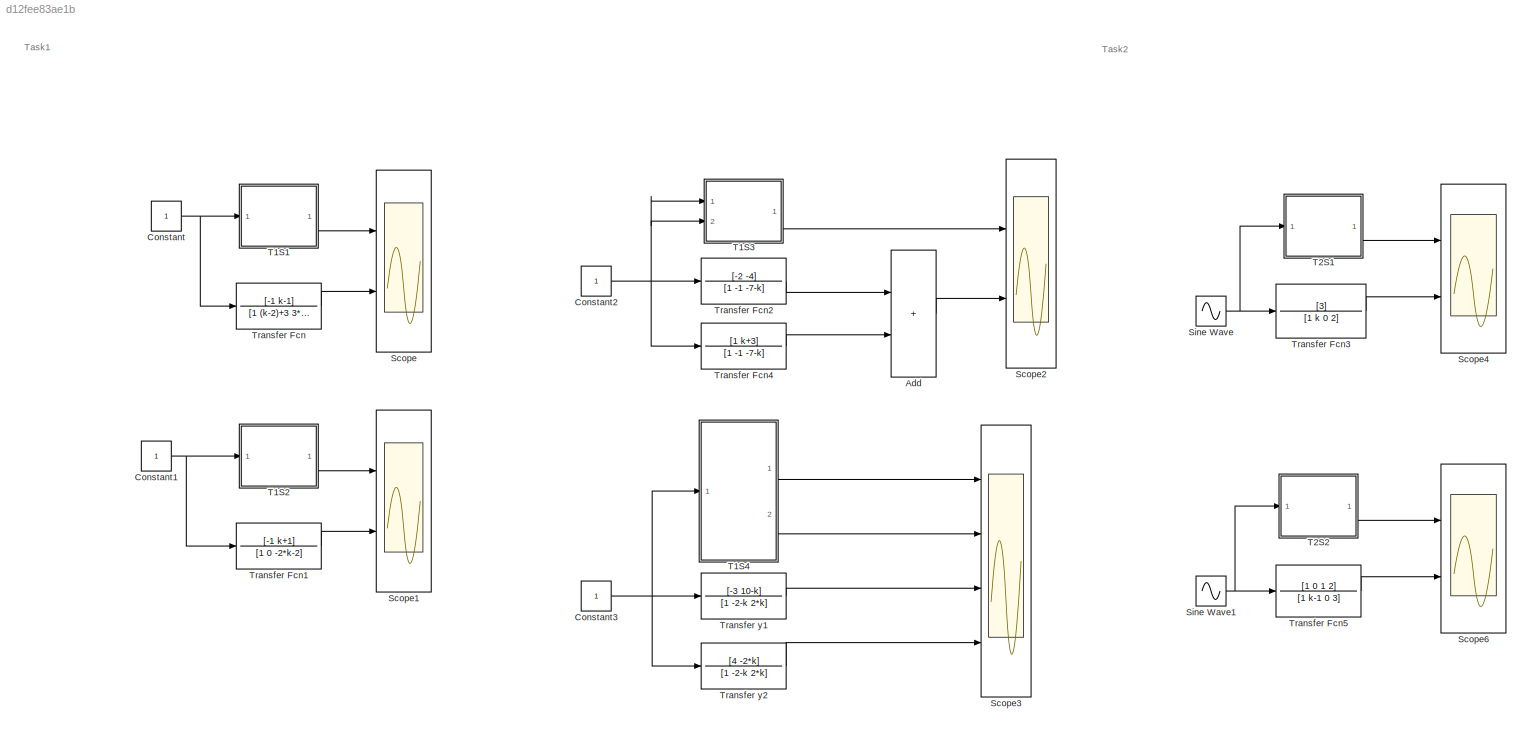
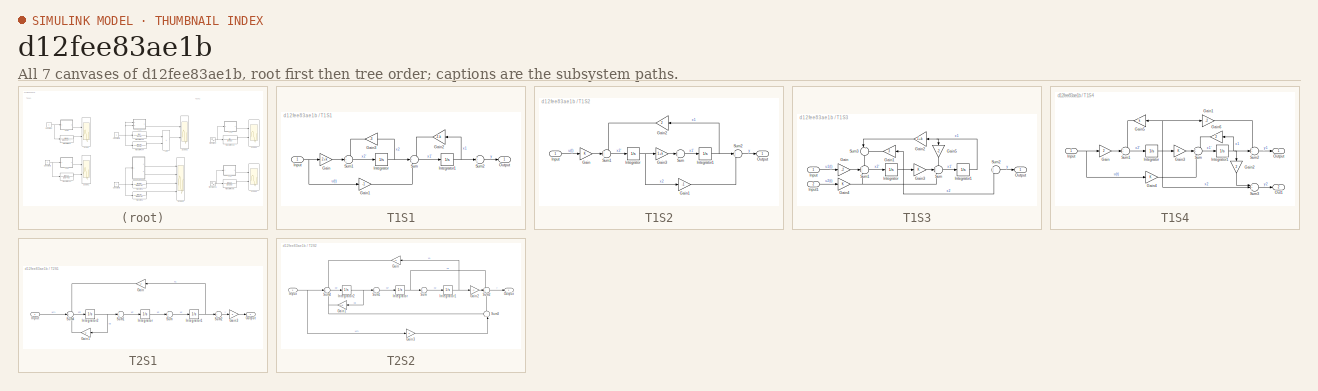
[diagram: thumbnail index - all 7 canvases of the model, root first then tree order]
MODEL slx_d12fee83ae1b
KIND model
CONFIG AbsTol = auto
CONFIG EnableMultiTasking = off
CONFIG FixedStep = auto
CONFIG MaxStep = 1e-3
CONFIG MinStep = auto
CONFIG RelTol = 1e-6
CONFIG SampleTimeConstraint = Unconstrained
CONFIG SolverName = ode113
CONFIG StartTime = 0.0
CONFIG StopTime = 10
BLOCK [Sum] Add
  IconShape = rectangular
  Ports = [2, 1]
  RndMeth = Nearest
BLOCK [Constant] Constant
BLOCK [Constant] Constant1
BLOCK [Constant] Constant2
BLOCK [Constant] Constant3
BLOCK [Scope] Scope
  Floating = off
  NumInputPorts = 2
  Ports = [2]
  ScopeSpecificationString = Simulink.scopes.TimeScopeBlockCfg('CurrentConfiguration', extmgr.ConfigurationSet(extmgr.Configuration('Core','General UI',true),extmgr.Configuration('Core','Source UI',true),extmgr.Configuration('Sources','WiredSimulink',true),extmgr.Configuration('Visuals','Time Domain',true,'SerializedDisplays',{struct('MinYLimReal','-0.09955','MaxYLimReal','0.4555','YLabelReal','','MinYLimMag','0.00000','MaxYL...<+1481ch>
BLOCK [Scope] Scope1
  Floating = off
  NumInputPorts = 2
  Ports = [2]
  ScopeSpecificationString = Simulink.scopes.TimeScopeBlockCfg('CurrentConfiguration', extmgr.ConfigurationSet(extmgr.Configuration('Core','General UI',true),extmgr.Configuration('Core','Source UI',true),extmgr.Configuration('Sources','WiredSimulink',true,'DataLoggingVariableName','ScopeData1'),extmgr.Configuration('Visuals','Time Domain',true,'SerializedDisplays',{struct('MinYLimReal','-46.59034','MaxYLimReal','418.64323','Y...<+1552ch>
BLOCK [Scope] Scope2
  Floating = off
  NumInputPorts = 2
  Ports = [2]
  ScopeSpecificationString = Simulink.scopes.TimeScopeBlockCfg('CurrentConfiguration', extmgr.ConfigurationSet(extmgr.Configuration('Core','General UI',true),extmgr.Configuration('Core','Source UI',true),extmgr.Configuration('Sources','WiredSimulink',true,'DataLoggingVariableName','ScopeData2'),extmgr.Configuration('Visuals','Time Domain',true,'SerializedDisplays',{struct('MinYLimReal','-4.25','MaxYLimReal','18.25','YLabelRea...<+1547ch>
BLOCK [Scope] Scope3
  Floating = off
  NumInputPorts = 4
  Ports = [4]
  ScopeSpecificationString = Simulink.scopes.TimeScopeBlockCfg('CurrentConfiguration', extmgr.ConfigurationSet(extmgr.Configuration('Core','General UI',true),extmgr.Configuration('Core','Source UI',true),extmgr.Configuration('Sources','WiredSimulink',true,'DataLoggingVariableName','ScopeData3'),extmgr.Configuration('Visuals','Time Domain',true,'SerializedDisplays',{struct('MinYLimReal','-996922741436628.25','MaxYLimReal','815...<+1944ch>
BLOCK [Scope] Scope4
  Floating = off
  NumInputPorts = 2
  Ports = [2]
  ScopeSpecificationString = Simulink.scopes.TimeScopeBlockCfg('CurrentConfiguration', extmgr.ConfigurationSet(extmgr.Configuration('Core','General UI',true),extmgr.Configuration('Core','Source UI',true),extmgr.Configuration('Sources','WiredSimulink',true,'DataLoggingVariableName','ScopeData4'),extmgr.Configuration('Visuals','Time Domain',true,'SerializedDisplays',{struct('MinYLimReal','-3.03569','MaxYLimReal','2.73789','YLab...<+1523ch>
BLOCK [Scope] Scope6
  Floating = off
  NumInputPorts = 2
  Ports = [2]
  ScopeSpecificationString = Simulink.scopes.TimeScopeBlockCfg('CurrentConfiguration', extmgr.ConfigurationSet(extmgr.Configuration('Core','General UI',true),extmgr.Configuration('Core','Source UI',true),extmgr.Configuration('Sources','WiredSimulink',true,'DataLoggingVariableName','ScopeData1'),extmgr.Configuration('Visuals','Time Domain',true,'SerializedDisplays',{struct('MinYLimReal','-3.10675','MaxYLimReal','4.12784','YLab...<+1523ch>
BLOCK [Sin] Sine Wave
  Amplitude = 3
  Frequency = 2
  Ports = [0, 1]
  SampleTime = 0
BLOCK [Sin] Sine Wave1
  Amplitude = 3
  Frequency = 2
  Ports = [0, 1]
  SampleTime = 0
BLOCK [SubSystem] T1S1
  Ports = [1, 1]
  RequestExecContextInheritance = off
BLOCK [Gain] T1S1/Gain
  Gain = 2+k
BLOCK [Gain] T1S1/Gain1
  Gain = -1
BLOCK [Gain] T1S1/Gain2
  Gain = 2-k
  NameLocation = top
BLOCK [Gain] T1S1/Gain3
  Gain = -3
  NameLocation = top
BLOCK [Inport] T1S1/Input
BLOCK [Integrator] T1S1/Integrator
  Ports = [1, 1]
BLOCK [Integrator] T1S1/Integrator1
  Ports = [1, 1]
BLOCK [Outport] T1S1/Output
BLOCK [Sum] T1S1/Sum
  Inputs = +++
  Ports = [3, 1]
BLOCK [Sum] T1S1/Sum1
  Inputs = +++
  Ports = [3, 1]
BLOCK [Sum] T1S1/Sum2
  Inputs = +++
  Ports = [3, 1]
BLOCK [SubSystem] T1S2
  Ports = [1, 1]
  RequestExecContextInheritance = off
BLOCK [Gain] T1S2/Gain
BLOCK [Gain] T1S2/Gain1
  Gain = -1
BLOCK [Gain] T1S2/Gain2
  Gain = 2
  NameLocation = top
BLOCK [Gain] T1S2/Gain3
  Gain = 1+k
BLOCK [Inport] T1S2/Input
BLOCK [Integrator] T1S2/Integrator
  Ports = [1, 1]
BLOCK [Integrator] T1S2/Integrator1
  Ports = [1, 1]
BLOCK [Outport] T1S2/Output
BLOCK [Sum] T1S2/Sum
  Inputs = +++
  Ports = [3, 1]
BLOCK [Sum] T1S2/Sum1
  Inputs = +++
  Ports = [3, 1]
BLOCK [Sum] T1S2/Sum2
  Inputs = +++
  Ports = [3, 1]
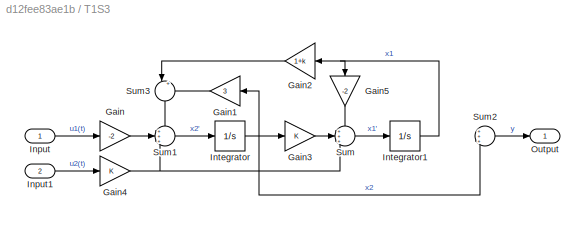
BLOCK [SubSystem] T1S3
  Ports = [2, 1]
  RequestExecContextInheritance = off
BLOCK [Gain] T1S3/Gain
  Gain = -2
BLOCK [Gain] T1S3/Gain1
  Gain = 3
  NameLocation = top
BLOCK [Gain] T1S3/Gain2
  Gain = 1+k
  NameLocation = top
BLOCK [Gain] T1S3/Gain3
BLOCK [Gain] T1S3/Gain4
BLOCK [Gain] T1S3/Gain5
  Gain = -2
  NameLocation = left
BLOCK [Inport] T1S3/Input
BLOCK [Inport] T1S3/Input1
  Port = 2
BLOCK [Integrator] T1S3/Integrator
  Ports = [1, 1]
BLOCK [Integrator] T1S3/Integrator1
  Ports = [1, 1]
BLOCK [Outport] T1S3/Output
BLOCK [Sum] T1S3/Sum
  Inputs = +++
  Ports = [3, 1]
BLOCK [Sum] T1S3/Sum1
  Inputs = +++
  Ports = [3, 1]
BLOCK [Sum] T1S3/Sum2
  Inputs = +++
  Ports = [3, 1]
BLOCK [Sum] T1S3/Sum3
  Inputs = |++
  NameLocation = left
  Ports = [2, 1]
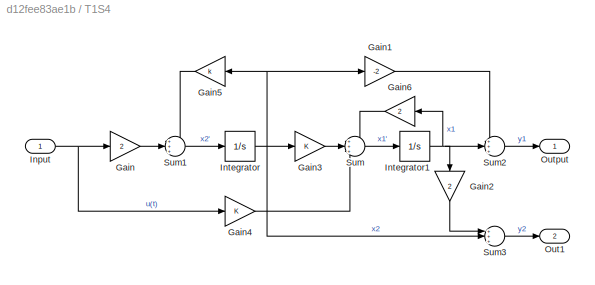
BLOCK [SubSystem] T1S4
  Ports = [1, 2]
  RequestExecContextInheritance = off
BLOCK [Gain] T1S4/Gain
  Gain = 2
BLOCK [Gain] T1S4/Gain1
  Gain = -2
BLOCK [Gain] T1S4/Gain2
  Gain = 2
  NameLocation = left
BLOCK [Gain] T1S4/Gain3
BLOCK [Gain] T1S4/Gain4
BLOCK [Gain] T1S4/Gain5
  Gain = k
  NameLocation = top
BLOCK [Gain] T1S4/Gain6
  Gain = 2
  NameLocation = top
BLOCK [Inport] T1S4/Input
BLOCK [Integrator] T1S4/Integrator
  Ports = [1, 1]
BLOCK [Integrator] T1S4/Integrator1
  Ports = [1, 1]
BLOCK [Outport] T1S4/Out1
  Port = 2
BLOCK [Outport] T1S4/Output
BLOCK [Sum] T1S4/Sum
  Inputs = +++
  Ports = [3, 1]
BLOCK [Sum] T1S4/Sum1
  Inputs = +++
  Ports = [3, 1]
BLOCK [Sum] T1S4/Sum2
  Inputs = +++
  Ports = [3, 1]
BLOCK [Sum] T1S4/Sum3
  Inputs = +++
  Ports = [3, 1]
BLOCK [SubSystem] T2S1
  Ports = [1, 1]
  RequestExecContextInheritance = off
BLOCK [Gain] T2S1/Gain
  Gain = -2
  NameLocation = top
BLOCK [Gain] T2S1/Gain1
  Gain = -k
  NameLocation = top
BLOCK [Gain] T2S1/Gain3
  Gain = 3
BLOCK [Inport] T2S1/Input
BLOCK [Integrator] T2S1/Integrator
  Ports = [1, 1]
BLOCK [Integrator] T2S1/Integrator1
  Ports = [1, 1]
BLOCK [Integrator] T2S1/Integrator2
  Ports = [1, 1]
BLOCK [Outport] T2S1/Output
BLOCK [Sum] T2S1/Sum
  Inputs = +++
  Ports = [3, 1]
BLOCK [Sum] T2S1/Sum1
  Inputs = +++
  Ports = [3, 1]
BLOCK [Sum] T2S1/Sum2
  Inputs = +++
  Ports = [3, 1]
BLOCK [Sum] T2S1/Sum4
  Inputs = +++
  Ports = [3, 1]
BLOCK [SubSystem] T2S2
  Ports = [1, 1]
  RequestExecContextInheritance = off
BLOCK [Gain] T2S2/Gain
  Gain = -3
  NameLocation = top
BLOCK [Gain] T2S2/Gain1
  Gain = 1-k
  NameLocation = top
BLOCK [Gain] T2S2/Gain2
  Gain = -1
BLOCK [Gain] T2S2/Gain3
BLOCK [Inport] T2S2/Input
BLOCK [Integrator] T2S2/Integrator
  Ports = [1, 1]
BLOCK [Integrator] T2S2/Integrator1
  Ports = [1, 1]
BLOCK [Integrator] T2S2/Integrator2
  Ports = [1, 1]
BLOCK [Outport] T2S2/Output
BLOCK [Sum] T2S2/Sum
  Inputs = +++
  Ports = [3, 1]
BLOCK [Sum] T2S2/Sum1
  Inputs = +++
  Ports = [3, 1]
BLOCK [Sum] T2S2/Sum2
  Inputs = +++
  Ports = [3, 1]
BLOCK [Sum] T2S2/Sum3
  Inputs = ++|
  NameLocation = right
  Ports = [2, 1]
BLOCK [Sum] T2S2/Sum4
  Inputs = +++
  Ports = [3, 1]
BLOCK [TransferFcn] Transfer Fcn
  Denominator = [1 (k-2)+3 3*(k-2)]
  Numerator = [-1 k-1]
BLOCK [TransferFcn] Transfer Fcn1
  Denominator = [1 0 -2*k-2]
  Numerator = [-1 k+1]
BLOCK [TransferFcn] Transfer Fcn2
  Denominator = [1 -1 -7-k]
  Numerator = [-2 -4]
BLOCK [TransferFcn] Transfer Fcn3
  Denominator = [1 k 0 2]
  Numerator = [3]
BLOCK [TransferFcn] Transfer Fcn4
  Denominator = [1 -1 -7-k]
  Numerator = [1 k+3]
BLOCK [TransferFcn] Transfer Fcn5
  Denominator = [1 k-1 0 3]
  Numerator = [1 0 1 2]
BLOCK [TransferFcn] Transfer y1
  Denominator = [1 -2-k 2*k]
  Numerator = [-3 10-k]
BLOCK [TransferFcn] Transfer y2
  Denominator = [1 -2-k 2*k]
  Numerator = [4 -2*k]
ANNOTATION (root): Task1
ANNOTATION (root): Task2
LINE Add:1 -> Scope2:2
NET Constant1:1 -> T1S2:1, Transfer Fcn1:1
NET Constant2:1 -> T1S3:1, T1S3:2, Transfer Fcn2:1, Transfer Fcn4:1
NET Constant3:1 -> T1S4:1, Transfer y1:1, Transfer y2:1
NET Constant:1 -> T1S1:1, Transfer Fcn:1
NET Sine Wave1:1 -> T2S2:1, Transfer Fcn5:1
NET Sine Wave:1 -> T2S1:1, Transfer Fcn3:1
LINE T1S1/Gain1:1 -> T1S1/Sum:3
LINE T1S1/Gain2:1 -> T1S1/Sum:1
LINE T1S1/Gain3:1 -> T1S1/Sum1:1
LINE T1S1/Gain:1 -> T1S1/Sum1:2
NET T1S1/Input:1 -> T1S1/Gain1:1, T1S1/Gain:1
NET T1S1/Integrator1:1 -> T1S1/Gain2:1, T1S1/Sum2:2
NET T1S1/Integrator:1 -> T1S1/Gain3:1, T1S1/Sum:2
LINE T1S1/Sum1:1 -> T1S1/Integrator:1
LINE T1S1/Sum2:1 -> T1S1/Output:1
LINE T1S1/Sum:1 -> T1S1/Integrator1:1
LINE T1S1:1 -> Scope:1
LINE T1S2/Gain1:1 -> T1S2/Sum2:3
LINE T1S2/Gain2:1 -> T1S2/Sum1:1
LINE T1S2/Gain3:1 -> T1S2/Sum:2
LINE T1S2/Gain:1 -> T1S2/Sum1:2
LINE T1S2/Input:1 -> T1S2/Gain:1
NET T1S2/Integrator1:1 -> T1S2/Gain2:1, T1S2/Sum2:2
NET T1S2/Integrator:1 -> T1S2/Gain1:1, T1S2/Gain3:1
LINE T1S2/Sum1:1 -> T1S2/Integrator:1
LINE T1S2/Sum2:1 -> T1S2/Output:1
LINE T1S2/Sum:1 -> T1S2/Integrator1:1
LINE T1S2:1 -> Scope1:1
LINE T1S3/Gain1:1 -> T1S3/Sum3:2
LINE T1S3/Gain2:1 -> T1S3/Sum3:1
LINE T1S3/Gain3:1 -> T1S3/Sum:2
NET T1S3/Gain4:1 -> T1S3/Sum1:3, T1S3/Sum:3
LINE T1S3/Gain5:1 -> T1S3/Sum:1
LINE T1S3/Gain:1 -> T1S3/Sum1:2
LINE T1S3/Input1:1 -> T1S3/Gain4:1
LINE T1S3/Input:1 -> T1S3/Gain:1
NET T1S3/Integrator1:1 -> T1S3/Gain2:1, T1S3/Gain5:1
NET T1S3/Integrator:1 -> T1S3/Gain1:1, T1S3/Gain3:1, T1S3/Sum2:3
LINE T1S3/Sum1:1 -> T1S3/Integrator:1
LINE T1S3/Sum2:1 -> T1S3/Output:1
LINE T1S3/Sum3:1 -> T1S3/Sum1:1
LINE T1S3/Sum:1 -> T1S3/Integrator1:1
LINE T1S3:1 -> Scope2:1
LINE T1S4/Gain1:1 -> T1S4/Sum2:1
LINE T1S4/Gain2:1 -> T1S4/Sum3:1
LINE T1S4/Gain3:1 -> T1S4/Sum:2
LINE T1S4/Gain4:1 -> T1S4/Sum:3
LINE T1S4/Gain5:1 -> T1S4/Sum1:1
LINE T1S4/Gain6:1 -> T1S4/Sum:1
LINE T1S4/Gain:1 -> T1S4/Sum1:2
NET T1S4/Input:1 -> T1S4/Gain4:1, T1S4/Gain:1
NET T1S4/Integrator1:1 -> T1S4/Gain2:1, T1S4/Gain6:1, T1S4/Sum2:2
NET T1S4/Integrator:1 -> T1S4/Gain1:1, T1S4/Gain3:1, T1S4/Gain5:1, T1S4/Sum3:2
LINE T1S4/Sum1:1 -> T1S4/Integrator:1
LINE T1S4/Sum2:1 -> T1S4/Output:1
LINE T1S4/Sum3:1 -> T1S4/Out1:1
LINE T1S4/Sum:1 -> T1S4/Integrator1:1
LINE T1S4:1 -> Scope3:1
LINE T1S4:2 -> Scope3:2
LINE T2S1/Gain1:1 -> T2S1/Sum4:3
LINE T2S1/Gain3:1 -> T2S1/Output:1
LINE T2S1/Gain:1 -> T2S1/Sum4:1
LINE T2S1/Input:1 -> T2S1/Sum4:2
NET T2S1/Integrator1:1 -> T2S1/Gain:1, T2S1/Sum2:2
NET T2S1/Integrator2:1 -> T2S1/Gain1:1, T2S1/Sum1:2
LINE T2S1/Integrator:1 -> T2S1/Sum:2
LINE T2S1/Sum1:1 -> T2S1/Integrator:1
LINE T2S1/Sum2:1 -> T2S1/Gain3:1
LINE T2S1/Sum4:1 -> T2S1/Integrator2:1
LINE T2S1/Sum:1 -> T2S1/Integrator1:1
LINE T2S1:1 -> Scope4:1
NET T2S2/Gain1:1 -> T2S2/Sum3:1, T2S2/Sum4:3
LINE T2S2/Gain2:1 -> T2S2/Sum2:2
LINE T2S2/Gain3:1 -> T2S2/Sum3:2
LINE T2S2/Gain:1 -> T2S2/Sum4:1
NET T2S2/Input:1 -> T2S2/Gain3:1, T2S2/Sum4:2
NET T2S2/Integrator1:1 -> T2S2/Gain2:1, T2S2/Gain:1
NET T2S2/Integrator2:1 -> T2S2/Gain1:1, T2S2/Sum1:2
NET T2S2/Integrator:1 -> T2S2/Sum2:1, T2S2/Sum:2
LINE T2S2/Sum1:1 -> T2S2/Integrator:1
LINE T2S2/Sum2:1 -> T2S2/Output:1
LINE T2S2/Sum3:1 -> T2S2/Sum2:3
LINE T2S2/Sum4:1 -> T2S2/Integrator2:1
LINE T2S2/Sum:1 -> T2S2/Integrator1:1
LINE T2S2:1 -> Scope6:1
LINE Transfer Fcn1:1 -> Scope1:2
LINE Transfer Fcn2:1 -> Add:1
LINE Transfer Fcn3:1 -> Scope4:2
LINE Transfer Fcn4:1 -> Add:2
LINE Transfer Fcn5:1 -> Scope6:2
LINE Transfer Fcn:1 -> Scope:2
LINE Transfer y1:1 -> Scope3:3
LINE Transfer y2:1 -> Scope3:4
note: NET lines group one-source signal fan-out (src -> all destinations, sorted); 1:1 wires keep LINE
